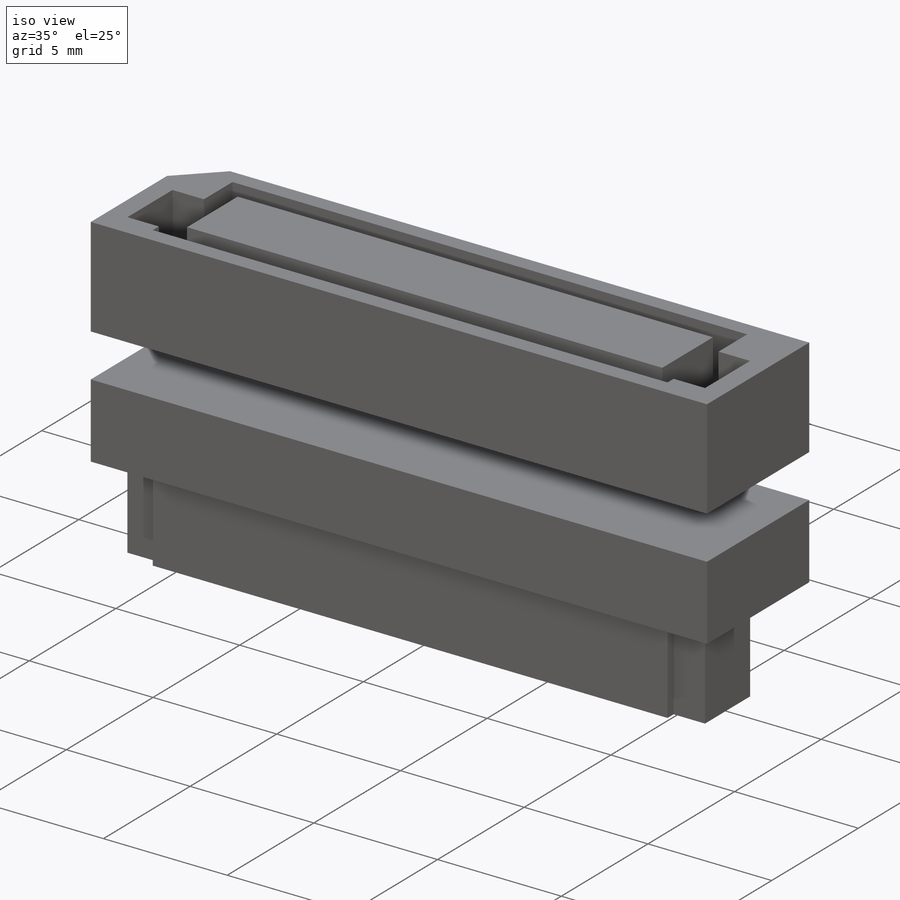
[diagram: iso view]
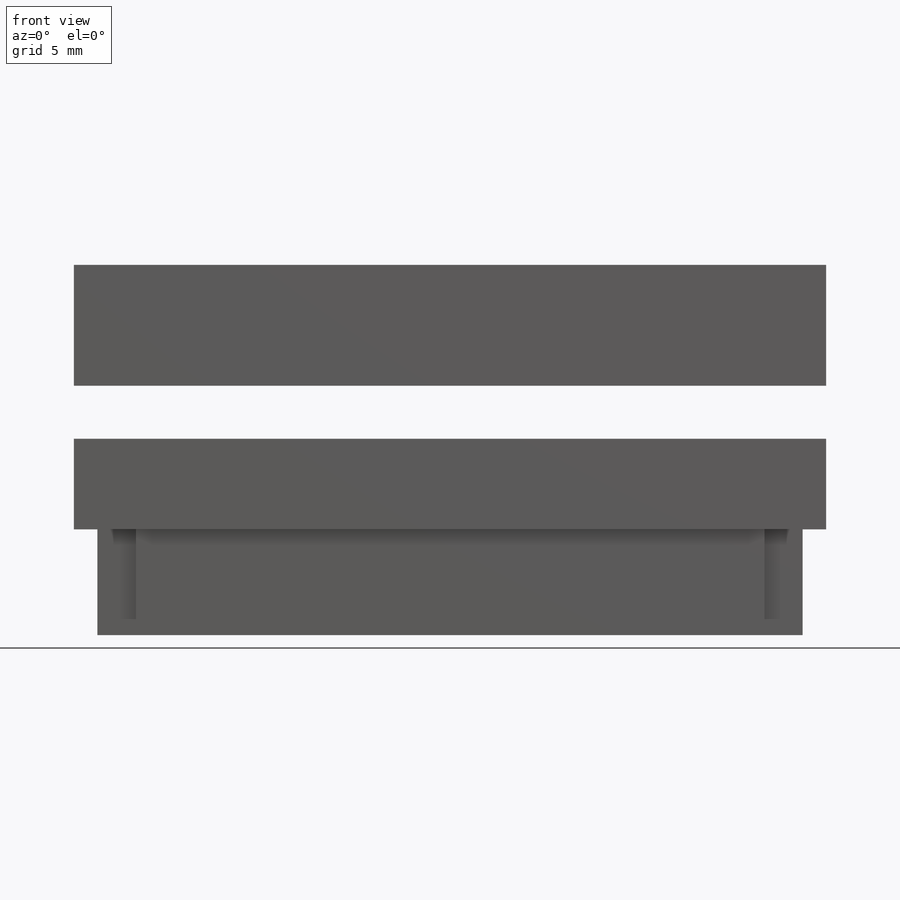
[diagram: front view]
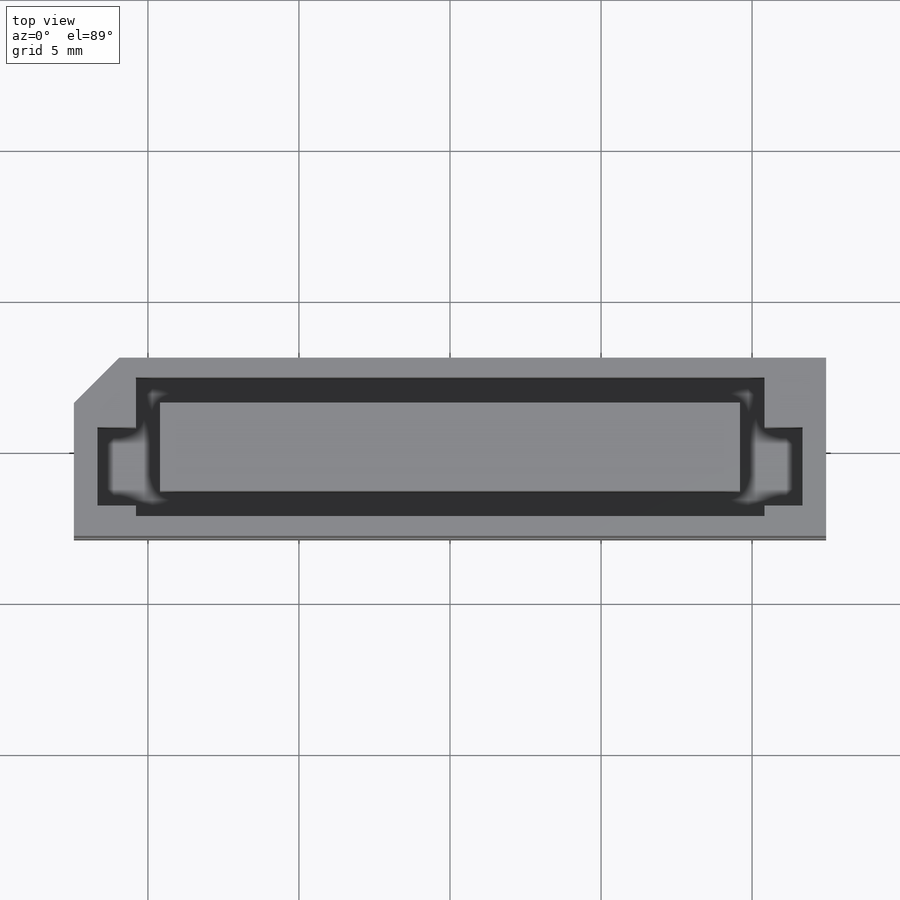
[diagram: top view]
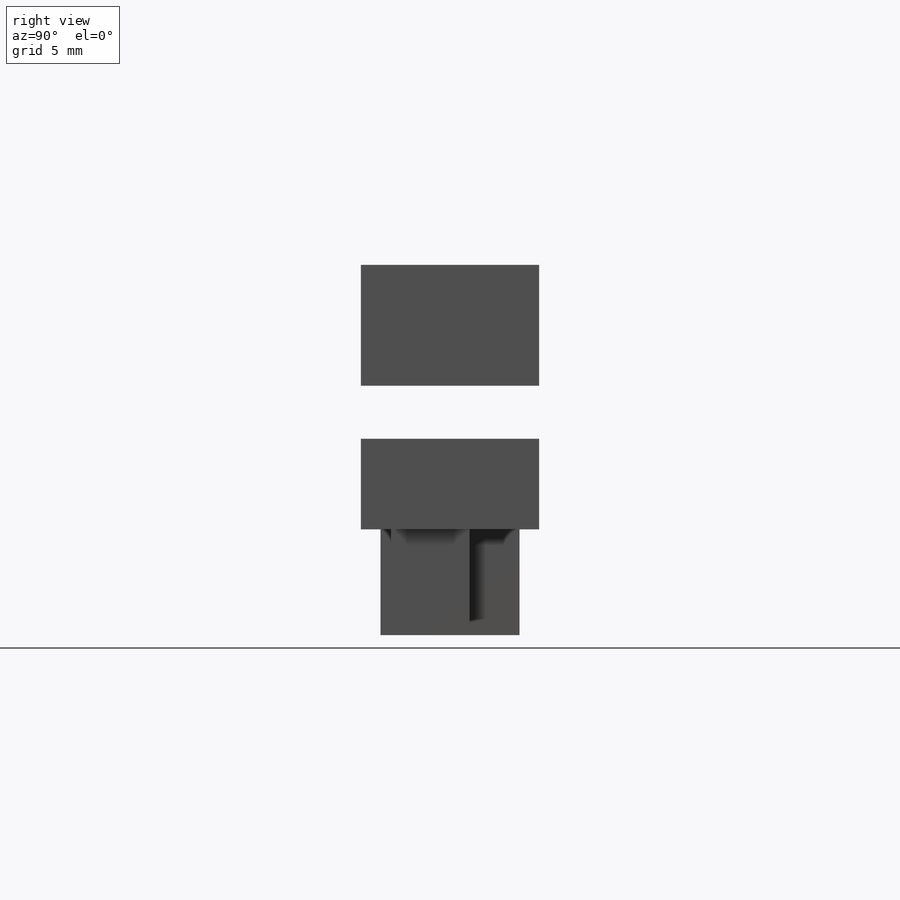
[diagram: right view]
SOLIDWORKS PART (.sldprt)
format: sldprt  version: not decoded by parser v0  size: 836,608 bytes
history: native  units: mm
features: sketch x10, plane x7, extrude x5, cut_extrude x4, material x1, mirror x1 (+12 scaffold rows collapsed)
feature tree (40):
  scaffold x12  (default folders/planes/origin — collapsed)
  material  "Material <not specified>"
  plane  "top-of-PCB"
  plane  "bottom-of-PCB"  Offset=1.7526mm
  plane  "center-of-slot"
  sketch  "all-outlines"  dims[c1.D1=~7.431838mm c1.D2=~70.863501mm c2.D1=~2.277114mm c3.D1=45.0deg c4.D1=~1.119376mm c5.D1=135.0deg c6.D1=1.5mm c7.D1=135.0deg c8.D1=1.5mm c9.D1=135.0deg c10.D1=~2.02174mm]
  sketch  "Sketch14"  dims[c1.D1=~8.281824mm c1.D2=~6.953344mm c2.D1=~3.039698mm c2.D2=~4.348834mm c3.D1=~2.235244mm c3.D2=~2.417986mm c4.D1=3.5mm c4.D2=~3.122248mm]
  extrude  "body"  Depth=12.45mm
  plane  "for-slot-a"  Offset=2.05mm
  sketch  "Sketch17"  dims[c1.D1=~5.531135mm c1.D2=~2.129623mm c2.D1=3.5mm c2.D2=4.6mm]
  cut_extrude  "slot-a"  [1 undecoded]
  plane  "for-slot-1"  Offset=0.78mm
  sketch  "Sketch18"  dims[c1.D1=~12.310125mm c1.D2=~7.555864mm c2.D1=~7.724063mm c2.D2=~0.475429mm c3.D1=3.5mm c3.D2=2.6mm]
  cut_extrude  "slot-1"  [1 undecoded]
  sketch  "Sketch23"  dims[D1=3.5mm D2=2.92mm]
  plane  "for-inner-body"  Offset=2.85mm
  extrude  "Boss-Extrude3"  [1 undecoded]
  mirror  "Mirror2"
  plane  "bevel"
  sketch  "Sketch19"  dims[D1=~4.945904mm D2=~1.93492mm]
  cut_extrude  "Cut-Extrude1"  Depth=1.06082mm
  sketch  "Sketch20"  dims[D1=24.9mm]
  extrude  "Boss-Extrude1"  Depth=3mm
  sketch  "Sketch22"  dims[D1=20.8mm]
  extrude  "Boss-Extrude2"  Depth=3.5mm
  sketch  "Sketch24"  dims[D1=2.92mm D2=43.2mm]
  cut_extrude  "Cut-Extrude2"  Depth=3.5mm
  sketch  "Sketch26"  dims[D1=19.2mm]
  extrude  "Boss-Extrude4"  Depth=5mm
decode coverage: 16 of 20 modeling features carry decoded parameters
note: ~ marks probable driven/reference dimensions
note: 3 parameter values undecoded
summary: no parameter record found for 3 features
note: suppression state not decoded; provenance and decode notes live in map.json
